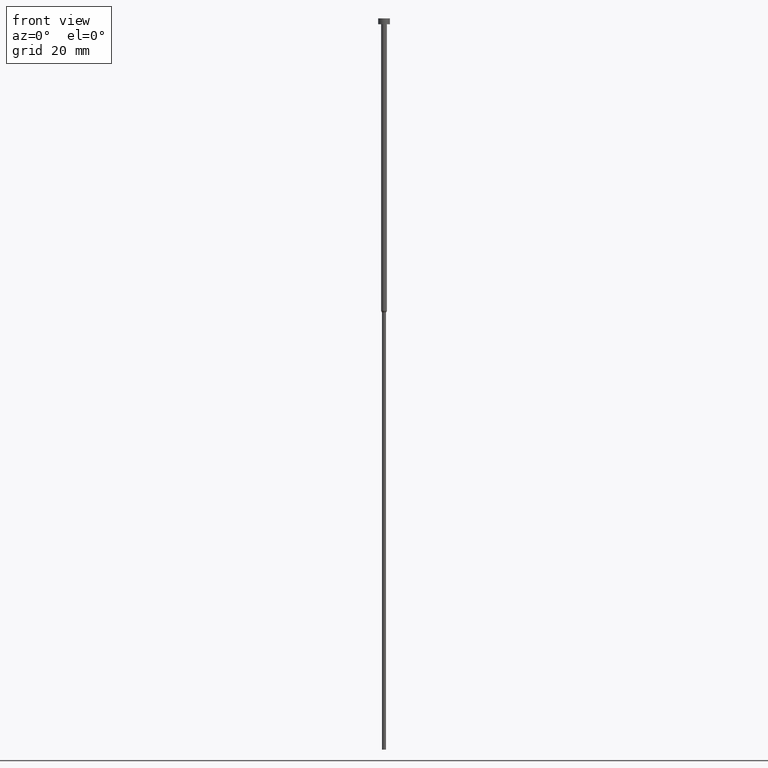
[diagram: clean part render]
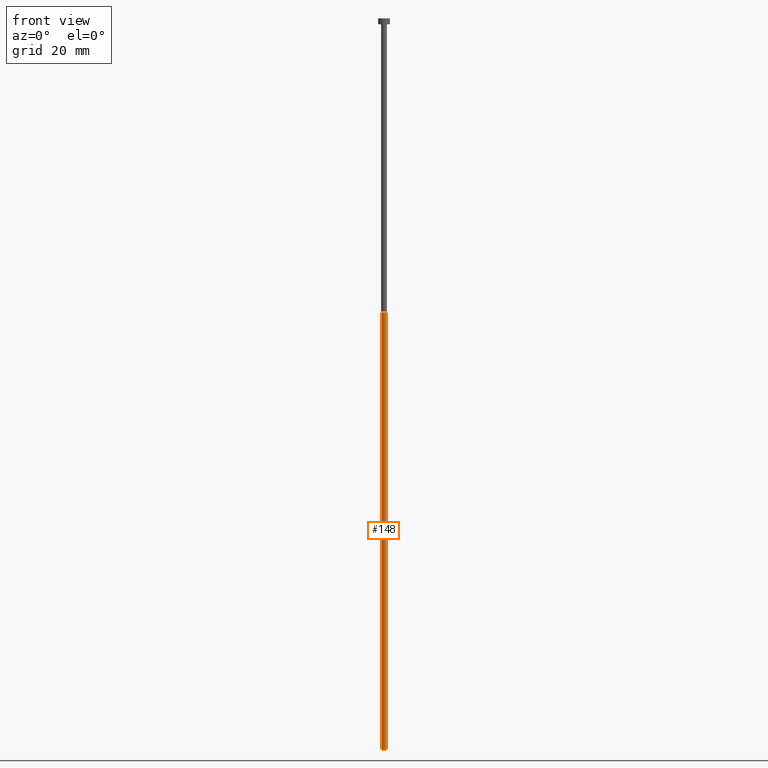
[diagram: same view with one face highlighted and labeled with its STEP entity id]
A machine part, front view. The second image highlights one B-rep face of the part: STEP entity #148.
In plain terms, the highlighted cylindrical surface (edge-blend (fillet) strip) has radius 0.7 mm, axis along (-0, -0, 1).
Its self-contained STEP definition (entity closure, byte-faithful):
#13 = DIRECTION ( 'NONE',  ( -0.000000000000000000, -0.000000000000000000, 1.000000000000000000 ) ) ;
#20 = CYLINDRICAL_SURFACE ( 'NONE', #168, 0.6999999999999998446 ) ;
#24 = CARTESIAN_POINT ( 'NONE',  ( 0.6999999999999998446, 0.000000000000000000, 0.000000000000000000 ) ) ;
#29 = DIRECTION ( 'NONE',  ( 1.000000000000000000, 0.000000000000000000, 0.000000000000000000 ) ) ;
#40 = CARTESIAN_POINT ( 'NONE',  ( 0.6999999999999998446, 0.000000000000000000, -250.0000000000000000 ) ) ;
#41 = VERTEX_POINT ( 'NONE', #40 ) ;
#52 = AXIS2_PLACEMENT_3D ( 'NONE', #325, #13, #66 ) ;
#63 = FACE_OUTER_BOUND ( 'NONE', #77, .T. ) ;
#66 = DIRECTION ( 'NONE',  ( 1.000000000000000000, 0.000000000000000000, 0.000000000000000000 ) ) ;
#67 = CIRCLE ( 'NONE', #337, 0.6999999999999998446 ) ;
#77 = EDGE_LOOP ( 'NONE', ( #179, #199, #304, #191 ) ) ;
#84 = LINE ( 'NONE', #207, #160 ) ;
#91 = EDGE_CURVE ( 'NONE', #184, #41, #258, .T. ) ;
#123 = CARTESIAN_POINT ( 'NONE',  ( 0.000000000000000000, 0.000000000000000000, 0.000000000000000000 ) ) ;
#128 = DIRECTION ( 'NONE',  ( -0.000000000000000000, -0.000000000000000000, 1.000000000000000000 ) ) ;
#138 = CARTESIAN_POINT ( 'NONE',  ( 0.000000000000000000, 0.000000000000000000, -100.5196152422706604 ) ) ;
#142 = EDGE_CURVE ( 'NONE', #184, #194, #84, .T. ) ;
#148 = ADVANCED_FACE ( 'NONE', ( #63 ), #20, .T. ) ;
#157 = VERTEX_POINT ( 'NONE', #177 ) ;
#160 = VECTOR ( 'NONE', #178, 1000.000000000000000 ) ;
#168 = AXIS2_PLACEMENT_3D ( 'NONE', #123, #175, #292 ) ;
#175 = DIRECTION ( 'NONE',  ( -0.000000000000000000, -0.000000000000000000, 1.000000000000000000 ) ) ;
#177 = CARTESIAN_POINT ( 'NONE',  ( 0.6999999999999998446, 0.000000000000000000, -100.5196152422706604 ) ) ;
#178 = DIRECTION ( 'NONE',  ( -0.000000000000000000, -0.000000000000000000, 1.000000000000000000 ) ) ;
#179 = ORIENTED_EDGE ( 'NONE', *, *, #142, .F. ) ;
#184 = VERTEX_POINT ( 'NONE', #264 ) ;
#191 = ORIENTED_EDGE ( 'NONE', *, *, #294, .F. ) ;
#194 = VERTEX_POINT ( 'NONE', #279 ) ;
#199 = ORIENTED_EDGE ( 'NONE', *, *, #91, .T. ) ;
#207 = CARTESIAN_POINT ( 'NONE',  ( -0.6999999999999998446, 8.572527594031470725E-17, 0.000000000000000000 ) ) ;
#258 = CIRCLE ( 'NONE', #52, 0.6999999999999998446 ) ;
#264 = CARTESIAN_POINT ( 'NONE',  ( -0.6999999999999998446, 8.572527594031470725E-17, -250.0000000000000000 ) ) ;
#278 = LINE ( 'NONE', #24, #301 ) ;
#279 = CARTESIAN_POINT ( 'NONE',  ( -0.6999999999999998446, 8.572527594031470725E-17, -100.5196152422706604 ) ) ;
#280 = DIRECTION ( 'NONE',  ( -0.000000000000000000, -0.000000000000000000, 1.000000000000000000 ) ) ;
#284 = EDGE_CURVE ( 'NONE', #41, #157, #278, .T. ) ;
#292 = DIRECTION ( 'NONE',  ( 1.000000000000000000, 0.000000000000000000, 0.000000000000000000 ) ) ;
#294 = EDGE_CURVE ( 'NONE', #194, #157, #67, .T. ) ;
#301 = VECTOR ( 'NONE', #128, 1000.000000000000000 ) ;
#304 = ORIENTED_EDGE ( 'NONE', *, *, #284, .T. ) ;
#325 = CARTESIAN_POINT ( 'NONE',  ( 0.000000000000000000, 0.000000000000000000, -250.0000000000000000 ) ) ;
#337 = AXIS2_PLACEMENT_3D ( 'NONE', #138, #280, #29 ) ;